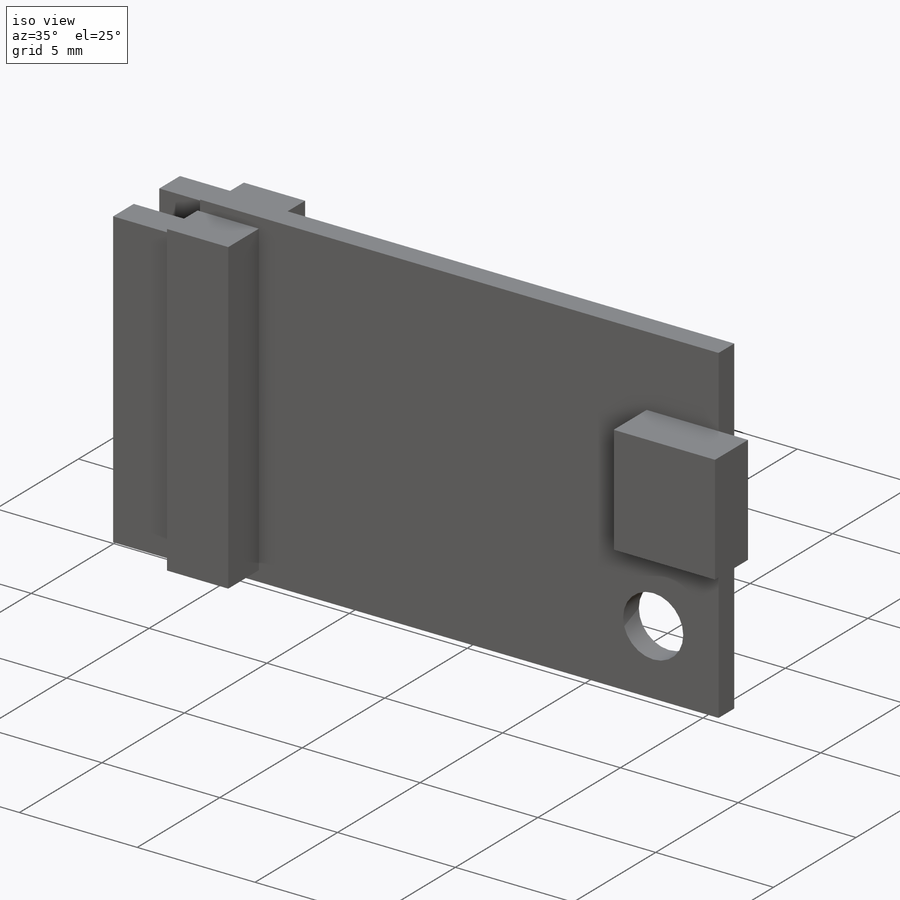
[diagram: iso view]
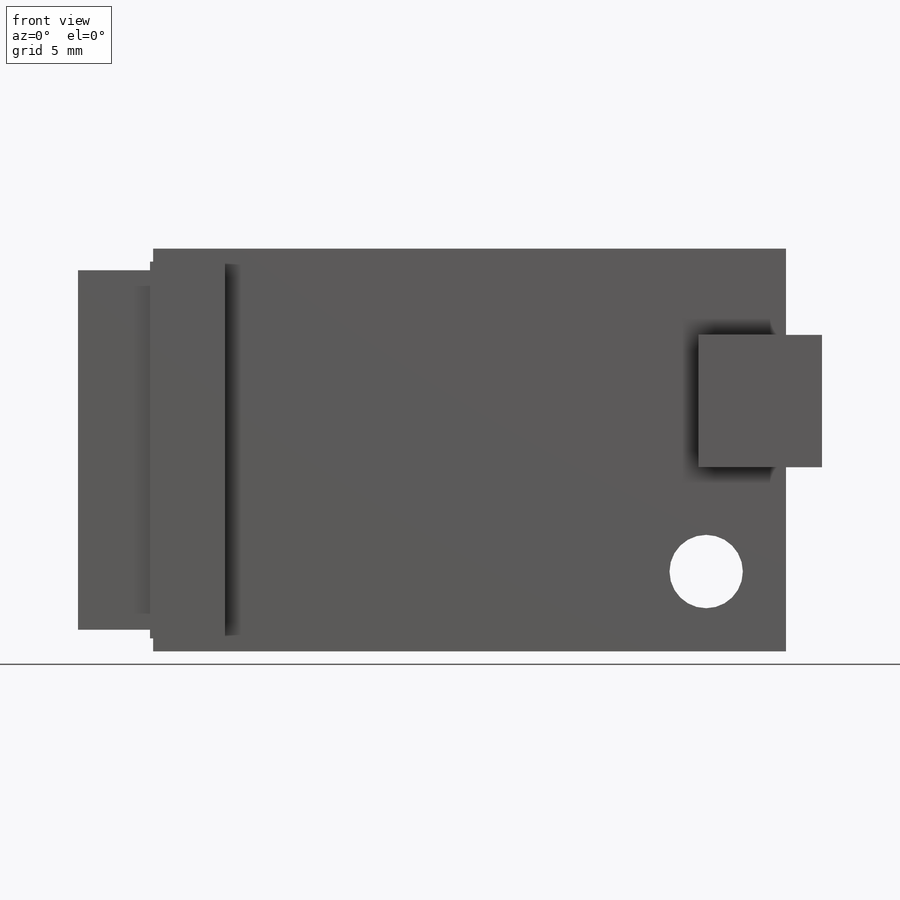
[diagram: front view]
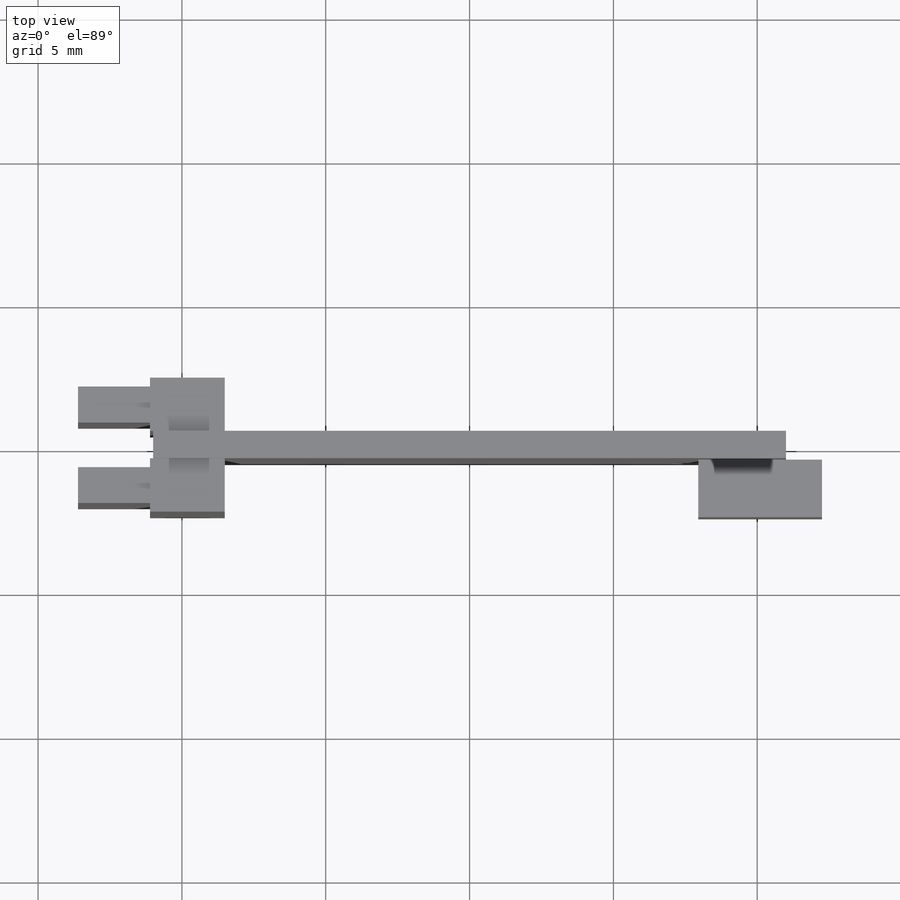
[diagram: top view]
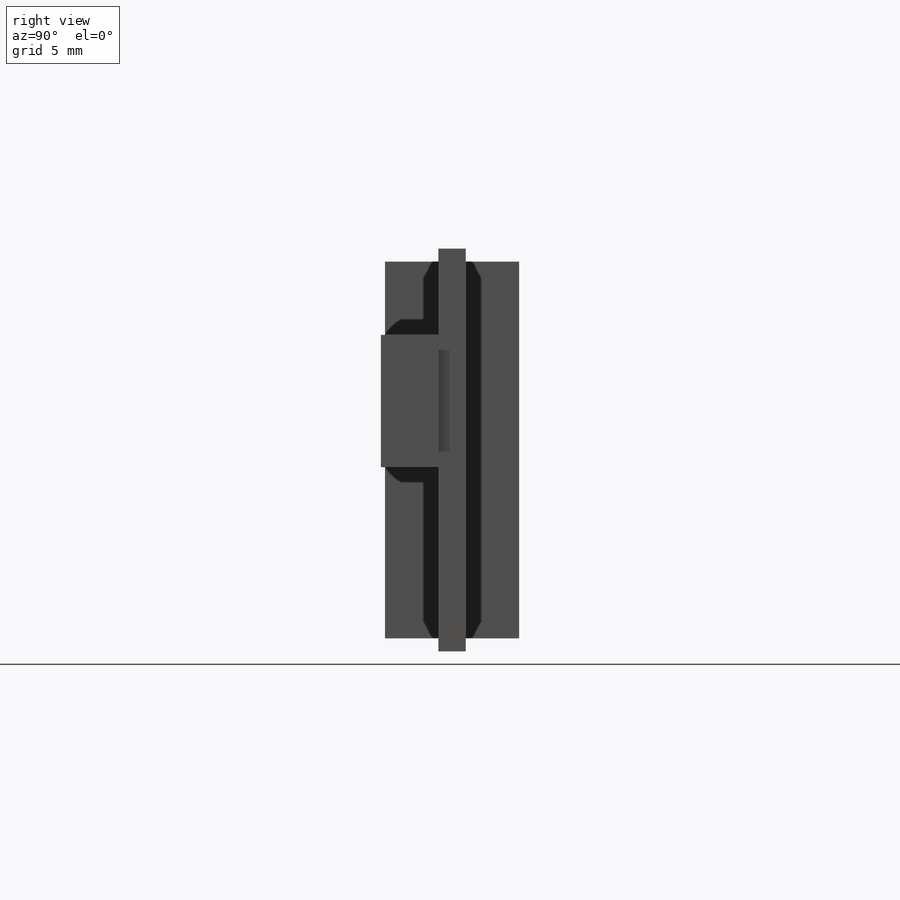
[diagram: right view]
SOLIDWORKS PART (.sldprt)
format: sldprt  version: not decoded by parser v0  size: 185,344 bytes
history: native  units: mm
features: sketch x4, extrude x4, mirror x2, material x1 (+13 scaffold rows collapsed)
feature tree (24):
  scaffold x13  (default folders/planes/origin — collapsed)
  material  "Material <not specified>"
  sketch  "Sketch1"  dims[c1.D3=~5.399321mm c1.D5=2.55mm c1.D1=14.0mm c1.D2=22.0mm c2.D3=1.5mm c2.D4=1.5mm]
  extrude  "Boss-Extrude1"  Depth=0.95mm
  sketch  "Sketch2"  dims[D1=13.1mm D2=2.6mm D3=0.11mm]
  extrude  "Boss-Extrude2"  Depth=1.855mm
  mirror  "Mirror1"
  sketch  "Sketch3"  dims[D1=1.4mm D2=1.25mm D3=12.5mm]
  extrude  "Boss-Extrude3"  Depth=2.5mm
  mirror  "Mirror2"
  sketch  "Sketch4"  dims[D1=4.6mm D2=4.3mm D3=1.25mm D4=3.0mm]
  extrude  "Boss-Extrude4"  Depth=2mm
decode coverage: 8 of 10 modeling features carry decoded parameters
note: ~ marks probable driven/reference dimensions
note: suppression state not decoded; provenance and decode notes live in map.json
